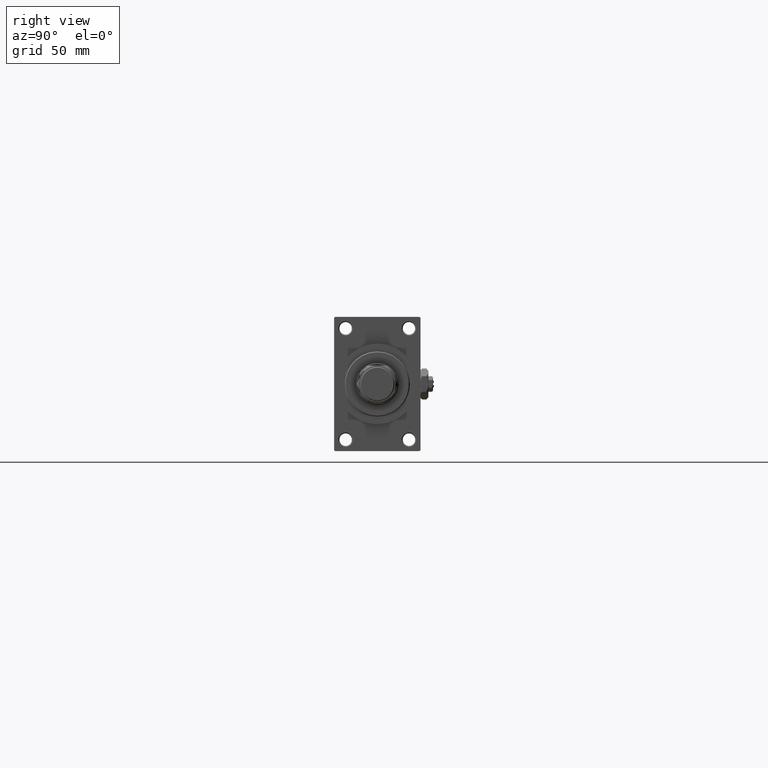
[diagram: clean part render]
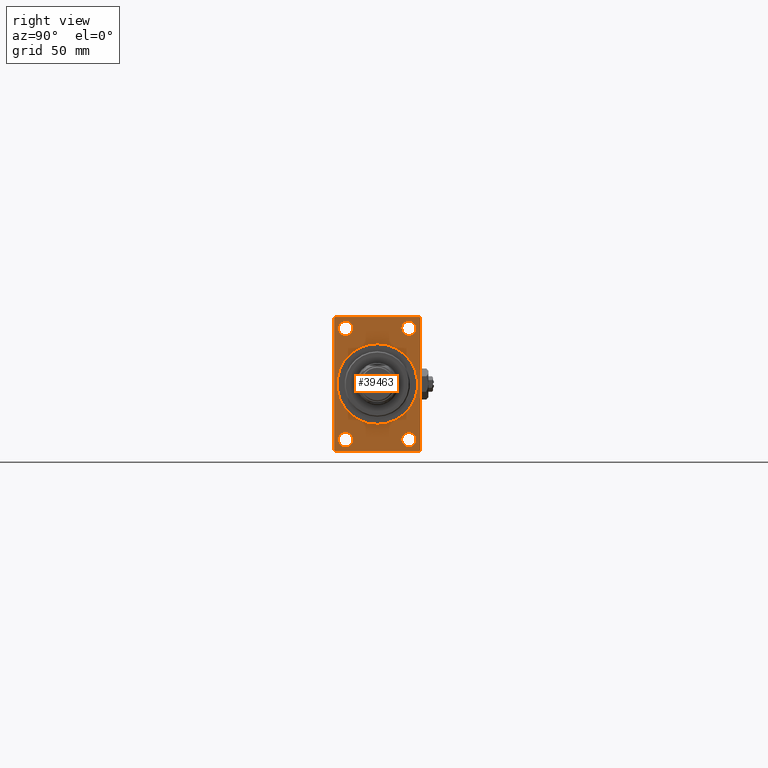
[diagram: same view with one face highlighted and labeled with its STEP entity id]
A machine part, right view. The second image highlights one B-rep face of the part: STEP entity #39463.
In plain terms, the highlighted planar face has unit normal (-1, 0, 0).
Its self-contained STEP definition (entity closure, byte-faithful):
#47 = VERTEX_POINT ( 'NONE', #42867 ) ;
#292 = CARTESIAN_POINT ( 'NONE',  ( 293.0000000000000000, 16.50000000000000000, 29.00000000000000355 ) ) ;
#1163 = EDGE_LOOP ( 'NONE', ( #12435, #50202, #2434, #41252, #13449, #20678, #48398, #35718 ) ) ;
#1797 = VERTEX_POINT ( 'NONE', #26963 ) ;
#1934 = VERTEX_POINT ( 'NONE', #40020 ) ;
#1942 = EDGE_CURVE ( 'NONE', #43233, #45316, #25350, .T. ) ;
#2434 = ORIENTED_EDGE ( 'NONE', *, *, #27297, .F. ) ;
#2465 = DIRECTION ( 'NONE',  ( 0.000000000000000000, -0.7071067811865279218, 0.7071067811865671127 ) ) ;
#2637 = EDGE_CURVE ( 'NONE', #48347, #38645, #20879, .T. ) ;
#3102 = DIRECTION ( 'NONE',  ( 0.000000000000000000, -1.000000000000000000, 0.000000000000000000 ) ) ;
#3379 = VECTOR ( 'NONE', #42686, 1000.000000000000000 ) ;
#3474 = CARTESIAN_POINT ( 'NONE',  ( 293.0000000000000000, -16.50000000000000000, -25.24999999999993605 ) ) ;
#3538 = CARTESIAN_POINT ( 'NONE',  ( 293.0000000000000000, 16.50000000000000000, -32.75000000000005684 ) ) ;
#3994 = VECTOR ( 'NONE', #3102, 1000.000000000000000 ) ;
#4866 = CARTESIAN_POINT ( 'NONE',  ( 293.0000000000000000, -22.00000000000001776, -35.00000000000000000 ) ) ;
#5118 = EDGE_CURVE ( 'NONE', #23889, #21278, #30669, .T. ) ;
#5305 = EDGE_CURVE ( 'NONE', #31611, #47, #29577, .T. ) ;
#5976 = CARTESIAN_POINT ( 'NONE',  ( 293.0000000000000000, 0.000000000000000000, 0.000000000000000000 ) ) ;
#6186 = EDGE_CURVE ( 'NONE', #36894, #22844, #11818, .T. ) ;
#6294 = EDGE_CURVE ( 'NONE', #9610, #29651, #28003, .T. ) ;
#6974 = CIRCLE ( 'NONE', #9398, 3.750000000000058620 ) ;
#7013 = CARTESIAN_POINT ( 'NONE',  ( 293.0000000000000000, 22.49999999999999645, -34.50000000000000000 ) ) ;
#7725 = DIRECTION ( 'NONE',  ( 0.000000000000000000, 0.000000000000000000, 1.000000000000000000 ) ) ;
#7962 = EDGE_CURVE ( 'NONE', #1934, #13161, #14902, .T. ) ;
#8640 = CIRCLE ( 'NONE', #9471, 3.750000000000055511 ) ;
#9398 = AXIS2_PLACEMENT_3D ( 'NONE', #46072, #49918, #41946 ) ;
#9471 = AXIS2_PLACEMENT_3D ( 'NONE', #19339, #35019, #46828 ) ;
#9610 = VERTEX_POINT ( 'NONE', #9858 ) ;
#9664 = DIRECTION ( 'NONE',  ( 0.000000000000000000, 0.000000000000000000, -1.000000000000000000 ) ) ;
#9858 = CARTESIAN_POINT ( 'NONE',  ( 293.0000000000000000, -16.50000000000000000, -32.75000000000005684 ) ) ;
#10730 = CARTESIAN_POINT ( 'NONE',  ( 293.0000000000000000, -16.50000000000000000, 25.24999999999995381 ) ) ;
#10881 = ORIENTED_EDGE ( 'NONE', *, *, #5305, .F. ) ;
#11400 = ORIENTED_EDGE ( 'NONE', *, *, #47449, .T. ) ;
#11448 = ORIENTED_EDGE ( 'NONE', *, *, #6294, .T. ) ;
#11630 = AXIS2_PLACEMENT_3D ( 'NONE', #32067, #28474, #39525 ) ;
#11735 = VECTOR ( 'NONE', #44333, 1000.000000000000000 ) ;
#11777 = EDGE_CURVE ( 'NONE', #38645, #36894, #47426, .T. ) ;
#11818 = LINE ( 'NONE', #50629, #3379 ) ;
#12067 = DIRECTION ( 'NONE',  ( -1.000000000000000000, -0.000000000000000000, -0.000000000000000000 ) ) ;
#12215 = CARTESIAN_POINT ( 'NONE',  ( 293.0000000000000000, -22.50000000000000355, 35.00000000000000000 ) ) ;
#12435 = ORIENTED_EDGE ( 'NONE', *, *, #11777, .T. ) ;
#12475 = CARTESIAN_POINT ( 'NONE',  ( 293.0000000000000000, 22.49999999999999645, -34.50000000000000000 ) ) ;
#12635 = AXIS2_PLACEMENT_3D ( 'NONE', #5976, #33971, #37313 ) ;
#12785 = DIRECTION ( 'NONE',  ( 0.000000000000000000, 0.000000000000000000, 1.000000000000000000 ) ) ;
#13020 = DIRECTION ( 'NONE',  ( 1.000000000000000000, 0.000000000000000000, 0.000000000000000000 ) ) ;
#13161 = VERTEX_POINT ( 'NONE', #29108 ) ;
#13182 = AXIS2_PLACEMENT_3D ( 'NONE', #20983, #13020, #9664 ) ;
#13425 = CARTESIAN_POINT ( 'NONE',  ( 293.0000000000000000, -22.50000000000000355, 34.50000000000000000 ) ) ;
#13449 = ORIENTED_EDGE ( 'NONE', *, *, #5118, .F. ) ;
#13919 = DIRECTION ( 'NONE',  ( -0.000000000000000000, -0.7071067811865672237, -0.7071067811865279218 ) ) ;
#14036 = CARTESIAN_POINT ( 'NONE',  ( 293.0000000000000000, -22.50000000000000355, -34.50000000000000000 ) ) ;
#14596 = VERTEX_POINT ( 'NONE', #10730 ) ;
#14603 = CIRCLE ( 'NONE', #34324, 21.00000000000000000 ) ;
#14628 = CARTESIAN_POINT ( 'NONE',  ( 293.0000000000000000, 22.49999999999999645, -35.00000000000000000 ) ) ;
#14902 = CIRCLE ( 'NONE', #41972, 3.750000000000058620 ) ;
#14943 = FACE_BOUND ( 'NONE', #42724, .T. ) ;
#15299 = ORIENTED_EDGE ( 'NONE', *, *, #16532, .T. ) ;
#15350 = AXIS2_PLACEMENT_3D ( 'NONE', #47765, #24875, #20773 ) ;
#15754 = DIRECTION ( 'NONE',  ( 0.000000000000000000, -1.000000000000000000, 0.000000000000000000 ) ) ;
#15787 = EDGE_LOOP ( 'NONE', ( #11448, #11400 ) ) ;
#16020 = CARTESIAN_POINT ( 'NONE',  ( 293.0000000000000000, -16.50000000000000000, -28.99999999999999289 ) ) ;
#16532 = EDGE_CURVE ( 'NONE', #48216, #14596, #8640, .T. ) ;
#16620 = CARTESIAN_POINT ( 'NONE',  ( 293.0000000000000000, -22.50000000000000355, 34.50000000000000000 ) ) ;
#16737 = EDGE_LOOP ( 'NONE', ( #36729, #20867 ) ) ;
#17789 = LINE ( 'NONE', #7013, #43263 ) ;
#18123 = CARTESIAN_POINT ( 'NONE',  ( 293.0000000000000000, -21.99999999999996092, 35.00000000000000000 ) ) ;
#18589 = CARTESIAN_POINT ( 'NONE',  ( 293.0000000000000000, 22.49999999999999645, 35.00000000000000000 ) ) ;
#19339 = CARTESIAN_POINT ( 'NONE',  ( 293.0000000000000000, -16.50000000000000000, 29.00000000000000711 ) ) ;
#20678 = ORIENTED_EDGE ( 'NONE', *, *, #47281, .T. ) ;
#20773 = DIRECTION ( 'NONE',  ( 0.000000000000000000, 0.000000000000000000, 1.000000000000000000 ) ) ;
#20867 = ORIENTED_EDGE ( 'NONE', *, *, #24084, .T. ) ;
#20879 = LINE ( 'NONE', #13425, #44250 ) ;
#20983 = CARTESIAN_POINT ( 'NONE',  ( 293.0000000000000000, 0.000000000000000000, 0.000000000000000000 ) ) ;
#21169 = ORIENTED_EDGE ( 'NONE', *, *, #7962, .T. ) ;
#21245 = AXIS2_PLACEMENT_3D ( 'NONE', #47989, #35672, #12785 ) ;
#21278 = VERTEX_POINT ( 'NONE', #12475 ) ;
#21305 = EDGE_CURVE ( 'NONE', #1797, #21278, #17789, .T. ) ;
#21587 = CARTESIAN_POINT ( 'NONE',  ( 293.0000000000000000, 22.49999999999999645, 34.50000000000000000 ) ) ;
#21882 = PLANE ( 'NONE',  #12635 ) ;
#22138 = ORIENTED_EDGE ( 'NONE', *, *, #26075, .F. ) ;
#22309 = DIRECTION ( 'NONE',  ( 1.000000000000000000, 0.000000000000000000, 0.000000000000000000 ) ) ;
#22844 = VERTEX_POINT ( 'NONE', #4866 ) ;
#23160 = CIRCLE ( 'NONE', #11630, 3.750000000000055511 ) ;
#23853 = CARTESIAN_POINT ( 'NONE',  ( 293.0000000000000000, 22.00000000000002132, 35.00000000000000000 ) ) ;
#23889 = VERTEX_POINT ( 'NONE', #21587 ) ;
#23891 = DIRECTION ( 'NONE',  ( -1.000000000000000000, -0.000000000000000000, -0.000000000000000000 ) ) ;
#24084 = EDGE_CURVE ( 'NONE', #45316, #43233, #36695, .T. ) ;
#24875 = DIRECTION ( 'NONE',  ( -1.000000000000000000, -0.000000000000000000, -0.000000000000000000 ) ) ;
#25350 = CIRCLE ( 'NONE', #21245, 3.750000000000055511 ) ;
#26018 = DIRECTION ( 'NONE',  ( -0.000000000000000000, 0.7071067811865672237, 0.7071067811865279218 ) ) ;
#26075 = EDGE_CURVE ( 'NONE', #47, #31611, #14603, .T. ) ;
#26443 = EDGE_LOOP ( 'NONE', ( #44935, #15299 ) ) ;
#26963 = CARTESIAN_POINT ( 'NONE',  ( 293.0000000000000000, 21.99999999999996803, -35.00000000000000000 ) ) ;
#27297 = EDGE_CURVE ( 'NONE', #1797, #22844, #33916, .T. ) ;
#27758 = CARTESIAN_POINT ( 'NONE',  ( 293.0000000000000000, -16.50000000000000000, -28.99999999999999289 ) ) ;
#27836 = CARTESIAN_POINT ( 'NONE',  ( 293.0000000000000000, 22.49999999999999645, 35.00000000000000000 ) ) ;
#28003 = CIRCLE ( 'NONE', #44396, 3.750000000000055511 ) ;
#28474 = DIRECTION ( 'NONE',  ( -1.000000000000000000, -0.000000000000000000, -0.000000000000000000 ) ) ;
#28780 = VECTOR ( 'NONE', #41963, 1000.000000000000000 ) ;
#29108 = CARTESIAN_POINT ( 'NONE',  ( 293.0000000000000000, 16.50000000000000000, 32.75000000000006395 ) ) ;
#29577 = CIRCLE ( 'NONE', #13182, 21.00000000000000000 ) ;
#29604 = FACE_BOUND ( 'NONE', #15787, .T. ) ;
#29651 = VERTEX_POINT ( 'NONE', #3474 ) ;
#30205 = CARTESIAN_POINT ( 'NONE',  ( 293.0000000000000000, 22.00000000000002132, 35.00000000000000000 ) ) ;
#30669 = LINE ( 'NONE', #18589, #28780 ) ;
#31611 = VERTEX_POINT ( 'NONE', #36014 ) ;
#31710 = DIRECTION ( 'NONE',  ( 0.000000000000000000, 0.000000000000000000, 1.000000000000000000 ) ) ;
#32067 = CARTESIAN_POINT ( 'NONE',  ( 293.0000000000000000, -16.50000000000000000, 29.00000000000000711 ) ) ;
#32377 = VECTOR ( 'NONE', #2465, 1000.000000000000000 ) ;
#32792 = CARTESIAN_POINT ( 'NONE',  ( 293.0000000000000000, -16.50000000000000000, 32.75000000000006395 ) ) ;
#33455 = FACE_BOUND ( 'NONE', #26443, .T. ) ;
#33492 = EDGE_CURVE ( 'NONE', #35091, #48347, #35807, .T. ) ;
#33916 = LINE ( 'NONE', #14628, #3994 ) ;
#33971 = DIRECTION ( 'NONE',  ( -1.000000000000000000, 0.000000000000000000, -0.000000000000000000 ) ) ;
#34324 = AXIS2_PLACEMENT_3D ( 'NONE', #41835, #22309, #37989 ) ;
#34399 = ORIENTED_EDGE ( 'NONE', *, *, #47594, .T. ) ;
#35019 = DIRECTION ( 'NONE',  ( -1.000000000000000000, -0.000000000000000000, -0.000000000000000000 ) ) ;
#35091 = VERTEX_POINT ( 'NONE', #23853 ) ;
#35317 = DIRECTION ( 'NONE',  ( -1.000000000000000000, -0.000000000000000000, -0.000000000000000000 ) ) ;
#35672 = DIRECTION ( 'NONE',  ( -1.000000000000000000, -0.000000000000000000, -0.000000000000000000 ) ) ;
#35718 = ORIENTED_EDGE ( 'NONE', *, *, #2637, .T. ) ;
#35807 = LINE ( 'NONE', #27836, #39512 ) ;
#36014 = CARTESIAN_POINT ( 'NONE',  ( 293.0000000000000000, 2.571758278209441661E-15, -21.00000000000000000 ) ) ;
#36695 = CIRCLE ( 'NONE', #15350, 3.750000000000055511 ) ;
#36729 = ORIENTED_EDGE ( 'NONE', *, *, #1942, .T. ) ;
#36894 = VERTEX_POINT ( 'NONE', #14036 ) ;
#37313 = DIRECTION ( 'NONE',  ( -0.000000000000000000, 0.000000000000000000, 1.000000000000000000 ) ) ;
#37618 = EDGE_CURVE ( 'NONE', #14596, #48216, #23160, .T. ) ;
#37820 = FACE_BOUND ( 'NONE', #46897, .T. ) ;
#37989 = DIRECTION ( 'NONE',  ( 0.000000000000000000, 0.000000000000000000, -1.000000000000000000 ) ) ;
#38145 = AXIS2_PLACEMENT_3D ( 'NONE', #16020, #35317, #31710 ) ;
#38645 = VERTEX_POINT ( 'NONE', #16620 ) ;
#39463 = ADVANCED_FACE ( 'NONE', ( #33455, #29604, #46049, #37820, #14943, #41408 ), #21882, .F. ) ;
#39512 = VECTOR ( 'NONE', #15754, 1000.000000000000000 ) ;
#39525 = DIRECTION ( 'NONE',  ( 0.000000000000000000, 0.000000000000000000, 1.000000000000000000 ) ) ;
#39571 = DIRECTION ( 'NONE',  ( 0.000000000000000000, 0.000000000000000000, 1.000000000000000000 ) ) ;
#40020 = CARTESIAN_POINT ( 'NONE',  ( 293.0000000000000000, 16.50000000000000000, 25.24999999999994671 ) ) ;
#41252 = ORIENTED_EDGE ( 'NONE', *, *, #21305, .T. ) ;
#41408 = FACE_OUTER_BOUND ( 'NONE', #1163, .T. ) ;
#41835 = CARTESIAN_POINT ( 'NONE',  ( 293.0000000000000000, 0.000000000000000000, 0.000000000000000000 ) ) ;
#41946 = DIRECTION ( 'NONE',  ( 0.000000000000000000, 0.000000000000000000, 1.000000000000000000 ) ) ;
#41963 = DIRECTION ( 'NONE',  ( 0.000000000000000000, 0.000000000000000000, -1.000000000000000000 ) ) ;
#41972 = AXIS2_PLACEMENT_3D ( 'NONE', #292, #12067, #7725 ) ;
#42686 = DIRECTION ( 'NONE',  ( 0.000000000000000000, 0.7071067811865279218, -0.7071067811865671127 ) ) ;
#42724 = EDGE_LOOP ( 'NONE', ( #22138, #10881 ) ) ;
#42867 = CARTESIAN_POINT ( 'NONE',  ( 293.0000000000000000, 0.000000000000000000, 21.00000000000000000 ) ) ;
#43233 = VERTEX_POINT ( 'NONE', #3538 ) ;
#43263 = VECTOR ( 'NONE', #26018, 1000.000000000000000 ) ;
#44250 = VECTOR ( 'NONE', #13919, 1000.000000000000000 ) ;
#44333 = DIRECTION ( 'NONE',  ( 0.000000000000000000, 0.000000000000000000, -1.000000000000000000 ) ) ;
#44396 = AXIS2_PLACEMENT_3D ( 'NONE', #27758, #23891, #39571 ) ;
#44935 = ORIENTED_EDGE ( 'NONE', *, *, #37618, .T. ) ;
#45058 = CARTESIAN_POINT ( 'NONE',  ( 293.0000000000000000, 16.50000000000000000, -25.24999999999993605 ) ) ;
#45316 = VERTEX_POINT ( 'NONE', #45058 ) ;
#46049 = FACE_BOUND ( 'NONE', #16737, .T. ) ;
#46072 = CARTESIAN_POINT ( 'NONE',  ( 293.0000000000000000, 16.50000000000000000, 29.00000000000000355 ) ) ;
#46828 = DIRECTION ( 'NONE',  ( 0.000000000000000000, 0.000000000000000000, 1.000000000000000000 ) ) ;
#46897 = EDGE_LOOP ( 'NONE', ( #21169, #34399 ) ) ;
#47281 = EDGE_CURVE ( 'NONE', #23889, #35091, #49717, .T. ) ;
#47426 = LINE ( 'NONE', #12215, #11735 ) ;
#47449 = EDGE_CURVE ( 'NONE', #29651, #9610, #49610, .T. ) ;
#47594 = EDGE_CURVE ( 'NONE', #13161, #1934, #6974, .T. ) ;
#47765 = CARTESIAN_POINT ( 'NONE',  ( 293.0000000000000000, 16.50000000000000000, -28.99999999999999289 ) ) ;
#47989 = CARTESIAN_POINT ( 'NONE',  ( 293.0000000000000000, 16.50000000000000000, -28.99999999999999289 ) ) ;
#48216 = VERTEX_POINT ( 'NONE', #32792 ) ;
#48347 = VERTEX_POINT ( 'NONE', #18123 ) ;
#48398 = ORIENTED_EDGE ( 'NONE', *, *, #33492, .T. ) ;
#49610 = CIRCLE ( 'NONE', #38145, 3.750000000000055511 ) ;
#49717 = LINE ( 'NONE', #30205, #32377 ) ;
#49918 = DIRECTION ( 'NONE',  ( -1.000000000000000000, -0.000000000000000000, -0.000000000000000000 ) ) ;
#50202 = ORIENTED_EDGE ( 'NONE', *, *, #6186, .T. ) ;
#50629 = CARTESIAN_POINT ( 'NONE',  ( 293.0000000000000000, -22.00000000000002842, -35.00000000000000000 ) ) ;